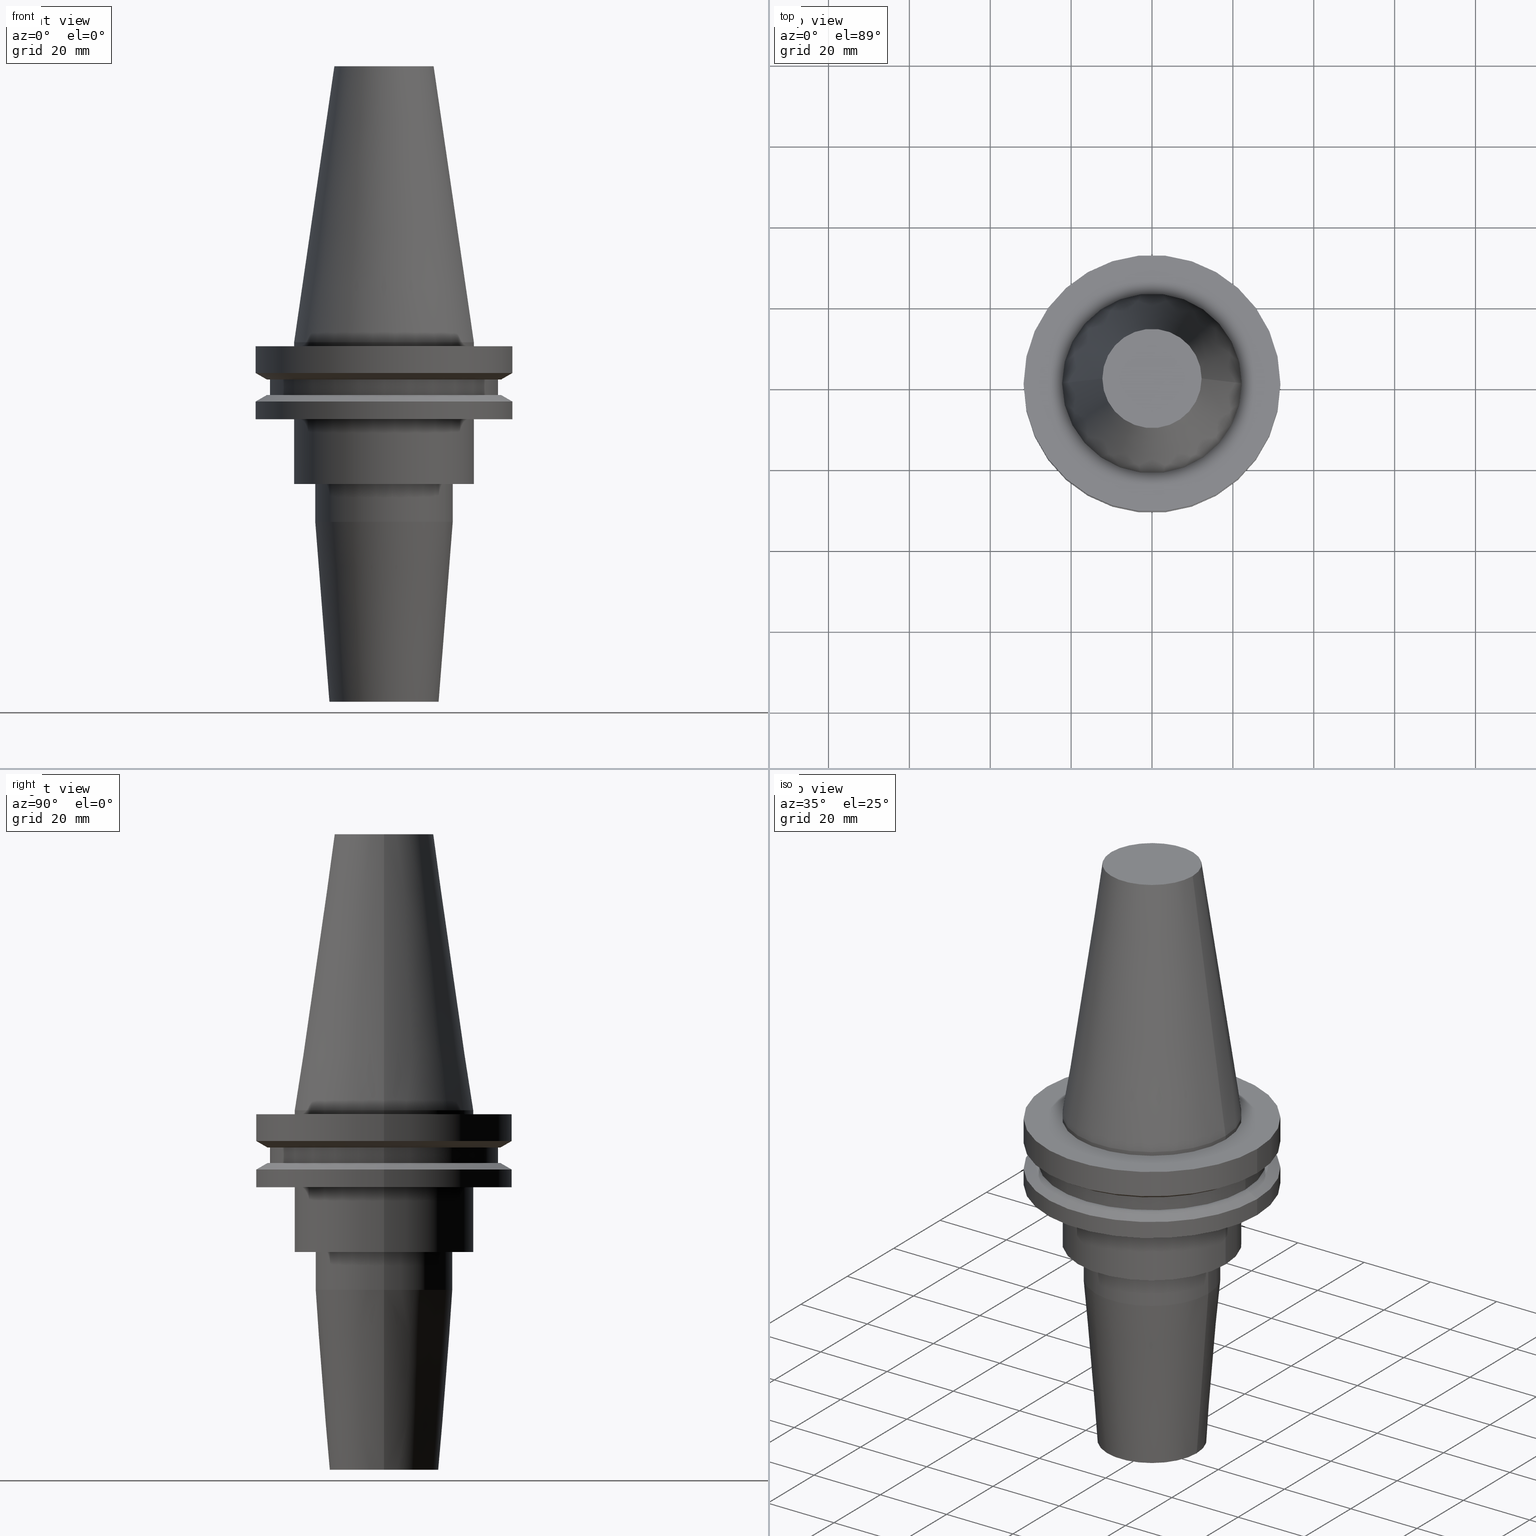
[diagram: canonical four-view strip — front | top / right | iso, engineering-drawing reading convention]
A machine part, canonical four-view strip (front | top / right | iso — engineering-drawing reading convention). The complete STEP part file that produces these views, byte-faithful:
ISO-10303-21;
HEADER;
FILE_DESCRIPTION (( 'STEP AP203' ),
    '1' );
FILE_NAME ('BCV40-SF_625-3_5.STEP',
    '2022-02-23T17:23:27',
    ( '' ),
    ( '' ),
    'SwSTEP 2.0',
    'SolidWorks 2021',
    '' );
FILE_SCHEMA (( 'CONFIG_CONTROL_DESIGN' ));
ENDSEC;

DATA;
#1 = DIRECTION ( 'NONE',  ( -0.000000000000000000, -0.000000000000000000, 1.000000000000000000 ) ) ;
#2 = CYLINDRICAL_SURFACE ( 'NONE', #279, 7.937499999999989342 ) ;
#3 = DIRECTION ( 'NONE',  ( -0.000000000000000000, -0.000000000000000000, 1.000000000000000000 ) ) ;
#4 = DIRECTION ( 'NONE',  ( -1.000000000000000000, 0.000000000000000000, -0.000000000000000000 ) ) ;
#5 = APPROVAL_PERSON_ORGANIZATION ( #416, #561, #233 ) ;
#6 = AXIS2_PLACEMENT_3D ( 'NONE', #642, #108, #193 ) ;
#7 = FACE_OUTER_BOUND ( 'NONE', #742, .T. ) ;
#8 = AXIS2_PLACEMENT_3D ( 'NONE', #260, #395, #518 ) ;
#9 = CARTESIAN_POINT ( 'NONE',  ( 0.000000000000000000, 0.000000000000000000, 68.25000000000000000 ) ) ;
#10 = DIRECTION ( 'NONE',  ( 0.000000000000000000, 0.000000000000000000, -1.000000000000000000 ) ) ;
#11 = DIRECTION ( 'NONE',  ( 1.000000000000000000, 0.000000000000000000, 0.000000000000000000 ) ) ;
#12 = EDGE_LOOP ( 'NONE', ( #713, #30 ) ) ;
#13 = ORIENTED_EDGE ( 'NONE', *, *, #185, .F. ) ;
#14 = CARTESIAN_POINT ( 'NONE',  ( -31.75000000000000000, 3.888253587292846476E-15, -7.605276606597335842 ) ) ;
#15 = CC_DESIGN_PERSON_AND_ORGANIZATION_ASSIGNMENT ( #546, #614, ( #535 ) ) ;
#16 = FACE_OUTER_BOUND ( 'NONE', #373, .T. ) ;
#17 = EDGE_CURVE ( 'NONE', #414, #148, #699, .T. ) ;
#18 = ORIENTED_EDGE ( 'NONE', *, *, #145, .F. ) ;
#19 = ADVANCED_FACE ( 'NONE', ( #422 ), #143, .T. ) ;
#20 = ORIENTED_EDGE ( 'NONE', *, *, #522, .F. ) ;
#21 = PERSON_AND_ORGANIZATION ( #134, #155 ) ;
#22 = AXIS2_PLACEMENT_3D ( 'NONE', #807, #265, #150 ) ;
#23 = LINE ( 'NONE', #91, #213 ) ;
#24 = CIRCLE ( 'NONE', #476, 7.937499999999992895 ) ;
#25 = VERTEX_POINT ( 'NONE', #635 ) ;
#26 = ORIENTED_EDGE ( 'NONE', *, *, #159, .F. ) ;
#27 = CALENDAR_DATE ( 2022, 23, 2 ) ;
#28 = DIRECTION ( 'NONE',  ( -0.8660254037844389297, 1.060575238724907285E-16, 0.4999999999999995004 ) ) ;
#29 = DIRECTION ( 'NONE',  ( -0.000000000000000000, -0.000000000000000000, 1.000000000000000000 ) ) ;
#30 = ORIENTED_EDGE ( 'NONE', *, *, #350, .T. ) ;
#31 = ADVANCED_FACE ( 'NONE', ( #617, #822 ), #304, .F. ) ;
#32 = CARTESIAN_POINT ( 'NONE',  ( 0.000000000000000000, 0.000000000000000000, -88.89999999999999147 ) ) ;
#33 = DIRECTION ( 'NONE',  ( -0.000000000000000000, -0.000000000000000000, 1.000000000000000000 ) ) ;
#34 = ORIENTED_EDGE ( 'NONE', *, *, #192, .F. ) ;
#35 = DATE_TIME_ROLE ( 'classification_date' ) ;
#36 = CARTESIAN_POINT ( 'NONE',  ( -17.00000000000000000, 2.081899558550500280E-15, -35.04999999999999716 ) ) ;
#37 = CIRCLE ( 'NONE', #90, 22.22500000000000142 ) ;
#38 = ORIENTED_EDGE ( 'NONE', *, *, #668, .F. ) ;
#39 = CONICAL_SURFACE ( 'NONE', #556, 13.50000000000000000, 0.07853981633973659837 ) ;
#40 = MANIFOLD_SOLID_BREP ( 'SF', #756 ) ;
#41 = VERTEX_POINT ( 'NONE', #814 ) ;
#42 = PERSON_AND_ORGANIZATION_ROLE ( 'creator' ) ;
#43 = CARTESIAN_POINT ( 'NONE',  ( 31.75000000000000000, 0.000000000000000000, -14.65472339340266572 ) ) ;
#44 = CARTESIAN_POINT ( 'NONE',  ( 0.000000000000000000, 0.000000000000000000, -13.05499999999999794 ) ) ;
#45 = EDGE_LOOP ( 'NONE', ( #129, #79, #440, #125 ) ) ;
#46 = EDGE_CURVE ( 'NONE', #164, #102, #24, .T. ) ;
#47 = DIRECTION ( 'NONE',  ( -0.000000000000000000, -0.000000000000000000, 1.000000000000000000 ) ) ;
#48 = ADVANCED_FACE ( 'NONE', ( #364 ), #371, .T. ) ;
#49 = DIRECTION ( 'NONE',  ( -0.000000000000000000, -0.000000000000000000, 1.000000000000000000 ) ) ;
#50 = EDGE_CURVE ( 'NONE', #238, #223, #490, .T. ) ;
#51 = EDGE_CURVE ( 'NONE', #632, #545, #643, .T. ) ;
#52 = VERTEX_POINT ( 'NONE', #830 ) ;
#53 = PLANE ( 'NONE',  #795 ) ;
#54 = CARTESIAN_POINT ( 'NONE',  ( 0.000000000000000000, 0.000000000000000000, 68.25000000000000000 ) ) ;
#55 = CIRCLE ( 'NONE', #711, 28.17999999999999972 ) ;
#56 = ORIENTED_EDGE ( 'NONE', *, *, #262, .F. ) ;
#57 = CARTESIAN_POINT ( 'NONE',  ( 0.000000000000000000, 0.000000000000000000, 68.25000000000000000 ) ) ;
#58 = CARTESIAN_POINT ( 'NONE',  ( -7.937499999999992895, 9.720633968232108301E-16, -88.89999999999999147 ) ) ;
#59 = ORIENTED_EDGE ( 'NONE', *, *, #531, .F. ) ;
#60 = CARTESIAN_POINT ( 'NONE',  ( 0.000000000000000000, 0.000000000000000000, 68.25000000000000000 ) ) ;
#61 = APPLICATION_CONTEXT ( 'configuration controlled 3d designs of mechanical parts and assemblies' ) ;
#62 = DIRECTION ( 'NONE',  ( 1.000000000000000000, 0.000000000000000000, 0.000000000000000000 ) ) ;
#63 = EDGE_CURVE ( 'NONE', #740, #632, #163, .T. ) ;
#64 = ORIENTED_EDGE ( 'NONE', *, *, #745, .F. ) ;
#65 = DIRECTION ( 'NONE',  ( -0.000000000000000000, -0.000000000000000000, 1.000000000000000000 ) ) ;
#66 = LINE ( 'NONE', #326, #203 ) ;
#67 = ORIENTED_EDGE ( 'NONE', *, *, #549, .F. ) ;
#68 = DIRECTION ( 'NONE',  ( 0.000000000000000000, 0.000000000000000000, -1.000000000000000000 ) ) ;
#69 = DIRECTION ( 'NONE',  ( -0.000000000000000000, -0.000000000000000000, 1.000000000000000000 ) ) ;
#70 = CARTESIAN_POINT ( 'NONE',  ( 0.000000000000000000, 0.000000000000000000, 68.25000000000000000 ) ) ;
#71 = EDGE_CURVE ( 'NONE', #223, #241, #55, .T. ) ;
#72 = DIRECTION ( 'NONE',  ( -0.000000000000000000, -0.000000000000000000, 1.000000000000000000 ) ) ;
#73 = CARTESIAN_POINT ( 'NONE',  ( 0.000000000000000000, 0.000000000000000000, -44.42828342338382441 ) ) ;
#74 = PRODUCT_DEFINITION_FORMATION_WITH_SPECIFIED_SOURCE ( 'ANY', '', #535, .NOT_KNOWN. ) ;
#75 = VECTOR ( 'NONE', #579, 1000.000000000000000 ) ;
#76 = DIRECTION ( 'NONE',  ( -0.000000000000000000, -0.000000000000000000, 1.000000000000000000 ) ) ;
#77 = AXIS2_PLACEMENT_3D ( 'NONE', #82, #72, #534 ) ;
#78 = DIRECTION ( 'NONE',  ( -0.000000000000000000, -0.000000000000000000, 1.000000000000000000 ) ) ;
#79 = ORIENTED_EDGE ( 'NONE', *, *, #636, .T. ) ;
#80 = ADVANCED_FACE ( 'NONE', ( #827 ), #294, .T. ) ;
#81 = EDGE_CURVE ( 'NONE', #241, #223, #338, .T. ) ;
#82 = CARTESIAN_POINT ( 'NONE',  ( 0.000000000000000000, 0.000000000000000000, -19.04999999999999716 ) ) ;
#83 = ADVANCED_FACE ( 'NONE', ( #427 ), #493, .T. ) ;
#84 = CARTESIAN_POINT ( 'NONE',  ( 0.000000000000000000, 0.000000000000000000, -88.89999999999999147 ) ) ;
#85 = ORIENTED_EDGE ( 'NONE', *, *, #350, .F. ) ;
#86 = COORDINATED_UNIVERSAL_TIME_OFFSET ( 6, 0, .BEHIND. ) ;
#87 = FACE_BOUND ( 'NONE', #93, .T. ) ;
#88 = ORIENTED_EDGE ( 'NONE', *, *, #438, .F. ) ;
#89 = VERTEX_POINT ( 'NONE', #644 ) ;
#90 = AXIS2_PLACEMENT_3D ( 'NONE', #437, #446, #374 ) ;
#91 = CARTESIAN_POINT ( 'NONE',  ( -28.97919780457007732, 3.548928183322474856E-15, -9.205000000000005400 ) ) ;
#92 = AXIS2_PLACEMENT_3D ( 'NONE', #507, #854, #848 ) ;
#93 = EDGE_LOOP ( 'NONE', ( #428, #13 ) ) ;
#94 = AXIS2_PLACEMENT_3D ( 'NONE', #73, #736, #528 ) ;
#95 = ORIENTED_EDGE ( 'NONE', *, *, #776, .T. ) ;
#96 = CARTESIAN_POINT ( 'NONE',  ( 22.22499999999999787, 0.000000000000000000, -35.04999999999999716 ) ) ;
#97 = DIRECTION ( 'NONE',  ( -0.000000000000000000, -0.000000000000000000, 1.000000000000000000 ) ) ;
#98 = ORIENTED_EDGE ( 'NONE', *, *, #302, .T. ) ;
#99 = DATE_AND_TIME ( #542, #707 ) ;
#100 = DIRECTION ( 'NONE',  ( -1.000000000000000000, 0.000000000000000000, -0.000000000000000000 ) ) ;
#101 = DIRECTION ( 'NONE',  ( 0.000000000000000000, 0.000000000000000000, -1.000000000000000000 ) ) ;
#102 = VERTEX_POINT ( 'NONE', #58 ) ;
#103 = CARTESIAN_POINT ( 'NONE',  ( -31.75000000000000000, 0.000000000000000000, -14.65472339340266572 ) ) ;
#104 = ADVANCED_FACE ( 'NONE', ( #777 ), #741, .T. ) ;
#105 = AXIS2_PLACEMENT_3D ( 'NONE', #615, #169, #752 ) ;
#106 = ORIENTED_EDGE ( 'NONE', *, *, #849, .T. ) ;
#107 = ORIENTED_EDGE ( 'NONE', *, *, #683, .F. ) ;
#108 = DIRECTION ( 'NONE',  ( -0.000000000000000000, -0.000000000000000000, 1.000000000000000000 ) ) ;
#109 = ORIENTED_EDGE ( 'NONE', *, *, #549, .T. ) ;
#110 = EDGE_LOOP ( 'NONE', ( #314, #587, #692, #450 ) ) ;
#111 = DIRECTION ( 'NONE',  ( -0.000000000000000000, -0.000000000000000000, 1.000000000000000000 ) ) ;
#112 = CARTESIAN_POINT ( 'NONE',  ( 0.000000000000000000, 0.000000000000000000, -9.205000000000005400 ) ) ;
#113 = ORIENTED_EDGE ( 'NONE', *, *, #185, .T. ) ;
#114 = LINE ( 'NONE', #647, #641 ) ;
#115 = CARTESIAN_POINT ( 'NONE',  ( -28.17999999999999972, 3.451054679997241634E-15, -13.05499999999999794 ) ) ;
#116 = CIRCLE ( 'NONE', #202, 7.937499999999987566 ) ;
#117 = CIRCLE ( 'NONE', #282, 31.75000000000000000 ) ;
#118 = VERTEX_POINT ( 'NONE', #833 ) ;
#119 = ADVANCED_FACE ( 'NONE', ( #844 ), #712, .T. ) ;
#120 = CARTESIAN_POINT ( 'NONE',  ( 0.000000000000000000, 0.000000000000000000, -9.205000000000005400 ) ) ;
#121 = CARTESIAN_POINT ( 'NONE',  ( -22.22499999999999787, 2.721777511104992454E-15, -35.04999999999999716 ) ) ;
#122 = VERTEX_POINT ( 'NONE', #121 ) ;
#123 = DIRECTION ( 'NONE',  ( 1.000000000000000000, 0.000000000000000000, 0.000000000000000000 ) ) ;
#124 = DIRECTION ( 'NONE',  ( 1.000000000000000000, 0.000000000000000000, 0.000000000000000000 ) ) ;
#125 = ORIENTED_EDGE ( 'NONE', *, *, #838, .F. ) ;
#126 =( NAMED_UNIT ( * ) SI_UNIT ( $, .STERADIAN. ) SOLID_ANGLE_UNIT ( ) );
#127 = CARTESIAN_POINT ( 'NONE',  ( -28.17999999999999972, 3.451054679997241634E-15, -9.204999999999991189 ) ) ;
#128 = AXIS2_PLACEMENT_3D ( 'NONE', #608, #429, #166 ) ;
#129 = ORIENTED_EDGE ( 'NONE', *, *, #719, .F. ) ;
#130 = AXIS2_PLACEMENT_3D ( 'NONE', #515, #187, #320 ) ;
#131 = CIRCLE ( 'NONE', #397, 12.27178102086201150 ) ;
#132 = FACE_OUTER_BOUND ( 'NONE', #559, .T. ) ;
#133 = EDGE_CURVE ( 'NONE', #122, #532, #824, .T. ) ;
#134 = PERSON ( 'UNSPECIFIED', 'UNSPECIFIED', 'UNSPECIFIED', ('UNSPECIFIED'), ('UNSPECIFIED'), ('UNSPECIFIED') ) ;
#135 = CARTESIAN_POINT ( 'NONE',  ( 17.00000000000000000, 0.000000000000000000, -44.42828342338382441 ) ) ;
#136 = DIRECTION ( 'NONE',  ( -0.000000000000000000, -0.000000000000000000, 1.000000000000000000 ) ) ;
#137 = DIRECTION ( 'NONE',  ( 1.000000000000000000, 0.000000000000000000, 0.000000000000000000 ) ) ;
#138 = CARTESIAN_POINT ( 'NONE',  ( 0.000000000000000000, 0.000000000000000000, 0.000000000000000000 ) ) ;
#139 = EDGE_CURVE ( 'NONE', #341, #409, #540, .T. ) ;
#140 = ADVANCED_FACE ( 'NONE', ( #639 ), #39, .T. ) ;
#141 = AXIS2_PLACEMENT_3D ( 'NONE', #57, #111, #638 ) ;
#142 = VECTOR ( 'NONE', #200, 1000.000000000000000 ) ;
#143 = CONICAL_SURFACE ( 'NONE', #299, 22.22500000000000142, 0.1448138465474119174 ) ;
#144 = FACE_OUTER_BOUND ( 'NONE', #322, .T. ) ;
#145 = EDGE_CURVE ( 'NONE', #516, #41, #117, .T. ) ;
#146 = ORIENTED_EDGE ( 'NONE', *, *, #474, .F. ) ;
#147 = APPLICATION_CONTEXT ( 'configuration controlled 3d designs of mechanical parts and assemblies' ) ;
#148 = VERTEX_POINT ( 'NONE', #253 ) ;
#149 = APPROVAL_STATUS ( 'not_yet_approved' ) ;
#150 = DIRECTION ( 'NONE',  ( 1.000000000000000000, 0.000000000000000000, 0.000000000000000000 ) ) ;
#151 = ORIENTED_EDGE ( 'NONE', *, *, #192, .T. ) ;
#152 = ORIENTED_EDGE ( 'NONE', *, *, #658, .F. ) ;
#153 = APPROVAL_ROLE ( '' ) ;
#154 = CARTESIAN_POINT ( 'NONE',  ( -22.22500000000000142, 2.721777511104992849E-15, -19.04999999999999716 ) ) ;
#155 = ORGANIZATION ( 'UNSPECIFIED', 'UNSPECIFIED', '' ) ;
#156 = DIRECTION ( 'NONE',  ( -0.000000000000000000, -0.000000000000000000, 1.000000000000000000 ) ) ;
#157 = ORIENTED_EDGE ( 'NONE', *, *, #81, .F. ) ;
#158 = DATE_TIME_ROLE ( 'creation_date' ) ;
#159 = EDGE_CURVE ( 'NONE', #791, #533, #769, .T. ) ;
#160 = AXIS2_PLACEMENT_3D ( 'NONE', #570, #506, #582 ) ;
#161 = DIRECTION ( 'NONE',  ( -0.000000000000000000, -0.000000000000000000, 1.000000000000000000 ) ) ;
#162 = CIRCLE ( 'NONE', #355, 28.17999999999999972 ) ;
#163 = LINE ( 'NONE', #240, #434 ) ;
#164 = VERTEX_POINT ( 'NONE', #456 ) ;
#165 = APPROVAL_DATE_TIME ( #560, #717 ) ;
#166 = DIRECTION ( 'NONE',  ( 1.000000000000000000, 0.000000000000000000, 0.000000000000000000 ) ) ;
#167 = DIRECTION ( 'NONE',  ( -0.000000000000000000, -0.000000000000000000, 1.000000000000000000 ) ) ;
#168 = PERSON_AND_ORGANIZATION ( #134, #155 ) ;
#169 = DIRECTION ( 'NONE',  ( -0.000000000000000000, -0.000000000000000000, 1.000000000000000000 ) ) ;
#170 = DIRECTION ( 'NONE',  ( 1.000000000000000000, 0.000000000000000000, 0.000000000000000000 ) ) ;
#171 = EDGE_CURVE ( 'NONE', #164, #431, #448, .T. ) ;
#172 = EDGE_CURVE ( 'NONE', #409, #341, #245, .T. ) ;
#173 = ORIENTED_EDGE ( 'NONE', *, *, #645, .F. ) ;
#174 = DIRECTION ( 'NONE',  ( 1.000000000000000000, 0.000000000000000000, 0.000000000000000000 ) ) ;
#175 = DIRECTION ( 'NONE',  ( -0.000000000000000000, -0.000000000000000000, 1.000000000000000000 ) ) ;
#176 = AXIS2_PLACEMENT_3D ( 'NONE', #367, #424, #693 ) ;
#177 = AXIS2_PLACEMENT_3D ( 'NONE', #112, #576, #388 ) ;
#178 = ORIENTED_EDGE ( 'NONE', *, *, #262, .T. ) ;
#179 = DIRECTION ( 'NONE',  ( 1.000000000000000000, 0.000000000000000000, 0.000000000000000000 ) ) ;
#180 = CARTESIAN_POINT ( 'NONE',  ( 0.000000000000000000, 0.000000000000000000, -88.89999999999999147 ) ) ;
#181 = ORIENTED_EDGE ( 'NONE', *, *, #17, .T. ) ;
#182 = FACE_BOUND ( 'NONE', #781, .T. ) ;
#183 = LINE ( 'NONE', #256, #571 ) ;
#184 = ORIENTED_EDGE ( 'NONE', *, *, #734, .T. ) ;
#185 = EDGE_CURVE ( 'NONE', #238, #381, #162, .T. ) ;
#186 = CARTESIAN_POINT ( 'NONE',  ( 22.22500000000000142, 2.721777511104992849E-15, 0.000000000000000000 ) ) ;
#187 = DIRECTION ( 'NONE',  ( -0.000000000000000000, -0.000000000000000000, 1.000000000000000000 ) ) ;
#188 = AXIS2_PLACEMENT_3D ( 'NONE', #349, #630, #826 ) ;
#189 = AXIS2_PLACEMENT_3D ( 'NONE', #591, #10, #602 ) ;
#190 = VECTOR ( 'NONE', #136, 1000.000000000000000 ) ;
#191 = ORIENTED_EDGE ( 'NONE', *, *, #498, .F. ) ;
#192 = EDGE_CURVE ( 'NONE', #458, #431, #836, .T. ) ;
#193 = DIRECTION ( 'NONE',  ( 1.000000000000000000, 0.000000000000000000, 0.000000000000000000 ) ) ;
#194 = DIRECTION ( 'NONE',  ( -1.000000000000000000, 0.000000000000000000, 0.000000000000000000 ) ) ;
#195 = EDGE_LOOP ( 'NONE', ( #688, #366, #837, #191 ) ) ;
#196 = DIRECTION ( 'NONE',  ( -0.000000000000000000, -0.000000000000000000, 1.000000000000000000 ) ) ;
#197 = CARTESIAN_POINT ( 'NONE',  ( 0.000000000000000000, 0.000000000000000000, -35.04999999999999716 ) ) ;
#198 = CC_DESIGN_DATE_AND_TIME_ASSIGNMENT ( #815, #35, ( #469 ) ) ;
#199 = EDGE_LOOP ( 'NONE', ( #541, #695, #831, #765 ) ) ;
#200 = DIRECTION ( 'NONE',  ( -0.000000000000000000, -0.000000000000000000, 1.000000000000000000 ) ) ;
#201 = DIRECTION ( 'NONE',  ( 1.000000000000000000, 0.000000000000000000, 0.000000000000000000 ) ) ;
#202 = AXIS2_PLACEMENT_3D ( 'NONE', #242, #47, #779 ) ;
#203 = VECTOR ( 'NONE', #439, 1000.000000000000000 ) ;
#204 = CARTESIAN_POINT ( 'NONE',  ( 0.000000000000000000, 7.937499999999987566, -49.89999999999999858 ) ) ;
#205 = DIRECTION ( 'NONE',  ( -0.000000000000000000, -0.000000000000000000, 1.000000000000000000 ) ) ;
#206 = DIRECTION ( 'NONE',  ( 1.000000000000000000, 0.000000000000000000, 0.000000000000000000 ) ) ;
#207 = CARTESIAN_POINT ( 'NONE',  ( -31.75000000000000000, 3.888253587292846476E-15, 68.25000000000000000 ) ) ;
#208 = LINE ( 'NONE', #792, #142 ) ;
#209 = EDGE_CURVE ( 'NONE', #430, #740, #183, .T. ) ;
#210 = FACE_OUTER_BOUND ( 'NONE', #199, .T. ) ;
#211 = LOCAL_TIME ( 11, 23, 27.00000000000000000, #478 ) ;
#212 = EDGE_LOOP ( 'NONE', ( #544, #633, #372, #552 ) ) ;
#213 = VECTOR ( 'NONE', #28, 1000.000000000000000 ) ;
#214 = EDGE_LOOP ( 'NONE', ( #673, #454, #173, #152 ) ) ;
#215 = PERSON_AND_ORGANIZATION_ROLE ( 'design_supplier' ) ;
#216 = CYLINDRICAL_SURFACE ( 'NONE', #246, 28.17999999999999972 ) ;
#217 = ORIENTED_EDGE ( 'NONE', *, *, #51, .F. ) ;
#218 = ORIENTED_EDGE ( 'NONE', *, *, #550, .F. ) ;
#219 = DATE_AND_TIME ( #281, #818 ) ;
#220 = DIRECTION ( 'NONE',  ( -0.000000000000000000, -0.000000000000000000, 1.000000000000000000 ) ) ;
#221 = DIRECTION ( 'NONE',  ( 1.000000000000000000, 0.000000000000000000, 0.000000000000000000 ) ) ;
#222 = CC_DESIGN_PERSON_AND_ORGANIZATION_ASSIGNMENT ( #168, #482, ( #471 ) ) ;
#223 = VERTEX_POINT ( 'NONE', #127 ) ;
#224 = EDGE_CURVE ( 'NONE', #376, #677, #66, .T. ) ;
#225 = CARTESIAN_POINT ( 'NONE',  ( 0.000000000000000000, 0.000000000000000000, -7.605276606597335842 ) ) ;
#226 = EDGE_CURVE ( 'NONE', #89, #258, #684, .T. ) ;
#227 = DIRECTION ( 'NONE',  ( 1.000000000000000000, 0.000000000000000000, 0.000000000000000000 ) ) ;
#228 = COORDINATED_UNIVERSAL_TIME_OFFSET ( 6, 0, .BEHIND. ) ;
#229 = VECTOR ( 'NONE', #220, 1000.000000000000000 ) ;
#230 = CARTESIAN_POINT ( 'NONE',  ( -7.937499999999989342, 9.720633968232104357E-16, 0.000000000000000000 ) ) ;
#231 = CIRCLE ( 'NONE', #449, 31.75000000000000000 ) ;
#232 = CARTESIAN_POINT ( 'NONE',  ( 0.000000000000000000, 0.000000000000000000, 68.25000000000000000 ) ) ;
#233 = APPROVAL_ROLE ( '' ) ;
#234 = CARTESIAN_POINT ( 'NONE',  ( -28.97919780457007732, 3.718590885307660666E-15, -9.205000000000005400 ) ) ;
#235 = DIRECTION ( 'NONE',  ( 1.000000000000000000, 0.000000000000000000, 0.000000000000000000 ) ) ;
#236 = EDGE_CURVE ( 'NONE', #420, #545, #659, .T. ) ;
#237 = ADVANCED_FACE ( 'NONE', ( #244 ), #772, .T. ) ;
#238 = VERTEX_POINT ( 'NONE', #115 ) ;
#239 = CARTESIAN_POINT ( 'NONE',  ( 31.75000000000000000, 0.000000000000000000, -7.605276606597335842 ) ) ;
#240 = CARTESIAN_POINT ( 'NONE',  ( 17.00000000000000000, 0.000000000000000000, 0.000000000000000000 ) ) ;
#241 = VERTEX_POINT ( 'NONE', #384 ) ;
#242 = CARTESIAN_POINT ( 'NONE',  ( 0.000000000000000000, 0.000000000000000000, -49.89999999999999858 ) ) ;
#243 = AXIS2_PLACEMENT_3D ( 'NONE', #575, #315, #832 ) ;
#244 = FACE_OUTER_BOUND ( 'NONE', #676, .T. ) ;
#245 = CIRCLE ( 'NONE', #728, 28.97919780457007732 ) ;
#246 = AXIS2_PLACEMENT_3D ( 'NONE', #530, #536, #470 ) ;
#247 = ORIENTED_EDGE ( 'NONE', *, *, #391, .F. ) ;
#248 = CARTESIAN_POINT ( 'NONE',  ( 22.22500000000000142, 0.000000000000000000, 68.25000000000000000 ) ) ;
#249 = DIRECTION ( 'NONE',  ( 1.000000000000000000, 0.000000000000000000, 0.000000000000000000 ) ) ;
#250 = PRODUCT_RELATED_PRODUCT_CATEGORY ( 'detail', '', ( #535 ) ) ;
#251 = EDGE_LOOP ( 'NONE', ( #109, #606, #301, #286 ) ) ;
#252 = DIRECTION ( 'NONE',  ( 0.1443082272672999711, 1.767266086135276757E-17, -0.9895327864921755756 ) ) ;
#253 = CARTESIAN_POINT ( 'NONE',  ( -28.97919780457008088, 0.000000000000000000, -13.05499999999999794 ) ) ;
#254 = ORIENTED_EDGE ( 'NONE', *, *, #577, .F. ) ;
#255 = PLANE ( 'NONE',  #407 ) ;
#256 = CARTESIAN_POINT ( 'NONE',  ( 13.50000000000000000, 0.000000000000000000, -88.89999999999999147 ) ) ;
#257 = AXIS2_PLACEMENT_3D ( 'NONE', #225, #161, #303 ) ;
#258 = VERTEX_POINT ( 'NONE', #405 ) ;
#259 = DIRECTION ( 'NONE',  ( -0.000000000000000000, -0.000000000000000000, 1.000000000000000000 ) ) ;
#260 = CARTESIAN_POINT ( 'NONE',  ( 0.000000000000000000, 0.000000000000000000, -19.04999999999999716 ) ) ;
#261 = ADVANCED_FACE ( 'NONE', ( #804 ), #344, .T. ) ;
#262 = EDGE_CURVE ( 'NONE', #568, #750, #231, .T. ) ;
#263 = EDGE_LOOP ( 'NONE', ( #346, #672, #95, #56 ) ) ;
#264 = CARTESIAN_POINT ( 'NONE',  ( -22.22500000000000142, 0.000000000000000000, 0.000000000000000000 ) ) ;
#265 = DIRECTION ( 'NONE',  ( 0.000000000000000000, -0.000000000000000000, 1.000000000000000000 ) ) ;
#266 = CARTESIAN_POINT ( 'NONE',  ( 0.000000000000000000, 0.000000000000000000, 68.25000000000000000 ) ) ;
#267 = CARTESIAN_POINT ( 'NONE',  ( 28.17999999999999972, 0.000000000000000000, -13.05499999999999794 ) ) ;
#268 = AXIS2_PLACEMENT_3D ( 'NONE', #816, #829, #100 ) ;
#269 = PLANE ( 'NONE',  #755 ) ;
#270 = DIRECTION ( 'NONE',  ( 1.000000000000000000, 0.000000000000000000, 0.000000000000000000 ) ) ;
#271 = ADVANCED_FACE ( 'NONE', ( #408 ), #216, .T. ) ;
#272 = CARTESIAN_POINT ( 'NONE',  ( 0.000000000000000000, 31.75000000000000000, -0.9999999999999995559 ) ) ;
#273 = DIRECTION ( 'NONE',  ( -0.000000000000000000, -0.000000000000000000, 1.000000000000000000 ) ) ;
#274 = ORIENTED_EDGE ( 'NONE', *, *, #236, .F. ) ;
#275 = ORIENTED_EDGE ( 'NONE', *, *, #847, .T. ) ;
#276 = DIRECTION ( 'NONE',  ( 1.000000000000000000, 0.000000000000000000, 0.000000000000000000 ) ) ;
#277 = FACE_BOUND ( 'NONE', #640, .T. ) ;
#278 = EDGE_LOOP ( 'NONE', ( #59, #845 ) ) ;
#279 = AXIS2_PLACEMENT_3D ( 'NONE', #521, #730, #399 ) ;
#280 = ORIENTED_EDGE ( 'NONE', *, *, #787, .F. ) ;
#281 = CALENDAR_DATE ( 2022, 23, 2 ) ;
#282 = AXIS2_PLACEMENT_3D ( 'NONE', #715, #452, #651 ) ;
#283 = AXIS2_PLACEMENT_3D ( 'NONE', #691, #167, #235 ) ;
#284 = DIRECTION ( 'NONE',  ( -0.8660254037844387076, 0.000000000000000000, -0.4999999999999998890 ) ) ;
#285 = EDGE_CURVE ( 'NONE', #791, #568, #402, .T. ) ;
#286 = ORIENTED_EDGE ( 'NONE', *, *, #209, .F. ) ;
#287 = ORIENTED_EDGE ( 'NONE', *, *, #411, .F. ) ;
#288 = PERSON_AND_ORGANIZATION ( #134, #155 ) ;
#289 = DIRECTION ( 'NONE',  ( 0.8660254037844389297, 0.000000000000000000, 0.4999999999999995004 ) ) ;
#290 = DIRECTION ( 'NONE',  ( 1.000000000000000000, 0.000000000000000000, 0.000000000000000000 ) ) ;
#291 = ORIENTED_EDGE ( 'NONE', *, *, #139, .T. ) ;
#292 = APPROVAL_DATE_TIME ( #219, #561 ) ;
#293 = CARTESIAN_POINT ( 'NONE',  ( 0.000000000000000000, 0.000000000000000000, 0.000000000000000000 ) ) ;
#294 = CYLINDRICAL_SURFACE ( 'NONE', #586, 31.75000000000000000 ) ;
#295 = PERSON_AND_ORGANIZATION ( #134, #155 ) ;
#296 = CIRCLE ( 'NONE', #782, 28.17999999999999972 ) ;
#297 = CYLINDRICAL_SURFACE ( 'NONE', #655, 17.00000000000000000 ) ;
#298 = VECTOR ( 'NONE', #1, 1000.000000000000000 ) ;
#299 = AXIS2_PLACEMENT_3D ( 'NONE', #435, #101, #764 ) ;
#300 = CARTESIAN_POINT ( 'NONE',  ( 0.000000000000000000, 0.000000000000000000, -88.89999999999999147 ) ) ;
#301 = ORIENTED_EDGE ( 'NONE', *, *, #323, .F. ) ;
#302 = EDGE_CURVE ( 'NONE', #770, #118, #131, .T. ) ;
#303 = DIRECTION ( 'NONE',  ( 1.000000000000000000, 0.000000000000000000, 0.000000000000000000 ) ) ;
#304 = PLANE ( 'NONE',  #853 ) ;
#305 = ORIENTED_EDGE ( 'NONE', *, *, #522, .T. ) ;
#306 = DIRECTION ( 'NONE',  ( 0.000000000000000000, -0.000000000000000000, 1.000000000000000000 ) ) ;
#307 = ORIENTED_EDGE ( 'NONE', *, *, #380, .F. ) ;
#308 = CC_DESIGN_APPROVAL ( #600, ( #471 ) ) ;
#309 = EDGE_LOOP ( 'NONE', ( #38, #34 ) ) ;
#310 = FACE_OUTER_BOUND ( 'NONE', #423, .T. ) ;
#311 = CIRCLE ( 'NONE', #821, 22.22500000000000142 ) ;
#312 = DIRECTION ( 'NONE',  ( -0.000000000000000000, -0.000000000000000000, 1.000000000000000000 ) ) ;
#313 = VECTOR ( 'NONE', #69, 1000.000000000000000 ) ;
#314 = ORIENTED_EDGE ( 'NONE', *, *, #523, .T. ) ;
#315 = DIRECTION ( 'NONE',  ( -0.000000000000000000, -0.000000000000000000, 1.000000000000000000 ) ) ;
#316 = DIRECTION ( 'NONE',  ( -0.000000000000000000, -0.000000000000000000, 1.000000000000000000 ) ) ;
#317 = ADVANCED_FACE ( 'NONE', ( #210 ), #738, .T. ) ;
#318 = ORIENTED_EDGE ( 'NONE', *, *, #631, .T. ) ;
#319 = DIRECTION ( 'NONE',  ( -0.000000000000000000, -0.000000000000000000, 1.000000000000000000 ) ) ;
#320 = DIRECTION ( 'NONE',  ( 1.000000000000000000, 0.000000000000000000, 0.000000000000000000 ) ) ;
#321 = ADVANCED_FACE ( 'NONE', ( #144, #793 ), #460, .F. ) ;
#322 = EDGE_LOOP ( 'NONE', ( #653, #778 ) ) ;
#323 = EDGE_CURVE ( 'NONE', #740, #420, #463, .T. ) ;
#324 = LINE ( 'NONE', #248, #352 ) ;
#325 = ADVANCED_FACE ( 'NONE', ( #132 ), #335, .F. ) ;
#326 = CARTESIAN_POINT ( 'NONE',  ( 22.22500000000000142, 0.000000000000000000, 68.25000000000000000 ) ) ;
#327 = CIRCLE ( 'NONE', #834, 13.50000000000000000 ) ;
#328 = AXIS2_PLACEMENT_3D ( 'NONE', #44, #375, #687 ) ;
#329 = EDGE_LOOP ( 'NONE', ( #291, #305, #505, #287 ) ) ;
#330 = DIRECTION ( 'NONE',  ( -0.000000000000000000, -0.000000000000000000, 1.000000000000000000 ) ) ;
#331 = FACE_OUTER_BOUND ( 'NONE', #621, .T. ) ;
#332 = CARTESIAN_POINT ( 'NONE',  ( 0.000000000000000000, 0.000000000000000000, -13.05499999999999794 ) ) ;
#333 = CARTESIAN_POINT ( 'NONE',  ( 31.75000000000000000, 0.000000000000000000, 68.25000000000000000 ) ) ;
#334 = CARTESIAN_POINT ( 'NONE',  ( 31.75000000000000000, 0.000000000000000000, 68.25000000000000000 ) ) ;
#335 = PLANE ( 'NONE',  #572 ) ;
#336 = CC_DESIGN_PERSON_AND_ORGANIZATION_ASSIGNMENT ( #21, #215, ( #74 ) ) ;
#337 = VECTOR ( 'NONE', #840, 1000.000000000000000 ) ;
#338 = CIRCLE ( 'NONE', #283, 28.17999999999999972 ) ;
#339 = CARTESIAN_POINT ( 'NONE',  ( 0.000000000000000000, 0.000000000000000000, -13.05499999999999794 ) ) ;
#340 = DIRECTION ( 'NONE',  ( 1.000000000000000000, 0.000000000000000000, 0.000000000000000000 ) ) ;
#341 = VERTEX_POINT ( 'NONE', #799 ) ;
#342 = ORIENTED_EDGE ( 'NONE', *, *, #171, .F. ) ;
#343 = CARTESIAN_POINT ( 'NONE',  ( 31.75000000000000000, 0.000000000000000000, -1.000000000000000888 ) ) ;
#344 = CYLINDRICAL_SURFACE ( 'NONE', #595, 22.22500000000000142 ) ;
#345 = ORIENTED_EDGE ( 'NONE', *, *, #474, .T. ) ;
#346 = ORIENTED_EDGE ( 'NONE', *, *, #285, .F. ) ;
#347 = EDGE_CURVE ( 'NONE', #677, #698, #503, .T. ) ;
#348 = LOCAL_TIME ( 11, 23, 27.00000000000000000, #362 ) ;
#349 = CARTESIAN_POINT ( 'NONE',  ( 0.000000000000000000, 0.000000000000000000, 0.000000000000000000 ) ) ;
#350 = EDGE_CURVE ( 'NONE', #102, #164, #731, .T. ) ;
#351 = ORIENTED_EDGE ( 'NONE', *, *, #50, .T. ) ;
#352 = VECTOR ( 'NONE', #319, 1000.000000000000000 ) ;
#353 = CONICAL_SURFACE ( 'NONE', #189, 31.75000000000000000, 1.047197551196597853 ) ;
#354 = SECURITY_CLASSIFICATION_LEVEL ( 'unclassified' ) ;
#355 = AXIS2_PLACEMENT_3D ( 'NONE', #442, #379, #580 ) ;
#356 = AXIS2_PLACEMENT_3D ( 'NONE', #743, #205, #664 ) ;
#357 = DIRECTION ( 'NONE',  ( 1.000000000000000000, 0.000000000000000000, 0.000000000000000000 ) ) ;
#358 = ORIENTED_EDGE ( 'NONE', *, *, #787, .T. ) ;
#359 = CARTESIAN_POINT ( 'NONE',  ( 28.97919780457008088, 3.718590885307660666E-15, -13.05499999999999794 ) ) ;
#360 = ORIENTED_EDGE ( 'NONE', *, *, #63, .T. ) ;
#361 = EDGE_LOOP ( 'NONE', ( #599, #351, #157, #146 ) ) ;
#362 = COORDINATED_UNIVERSAL_TIME_OFFSET ( 6, 0, .BEHIND. ) ;
#363 = DIRECTION ( 'NONE',  ( -0.000000000000000000, -0.000000000000000000, 1.000000000000000000 ) ) ;
#364 = FACE_OUTER_BOUND ( 'NONE', #329, .T. ) ;
#365 = ADVANCED_FACE ( 'NONE', ( #16, #277 ), #479, .F. ) ;
#366 = ORIENTED_EDGE ( 'NONE', *, *, #626, .T. ) ;
#367 = CARTESIAN_POINT ( 'NONE',  ( 0.000000000000000000, 0.000000000000000000, 0.000000000000000000 ) ) ;
#368 = CONICAL_SURFACE ( 'NONE', #739, 28.97919780457007732, 1.047197551196598297 ) ;
#369 = DIRECTION ( 'NONE',  ( -0.000000000000000000, -0.000000000000000000, 1.000000000000000000 ) ) ;
#370 = CIRCLE ( 'NONE', #809, 17.00000000000000000 ) ;
#371 = CONICAL_SURFACE ( 'NONE', #785, 28.97919780457007732, 1.047197551196598297 ) ;
#372 = ORIENTED_EDGE ( 'NONE', *, *, #838, .T. ) ;
#373 = EDGE_LOOP ( 'NONE', ( #709, #393 ) ) ;
#374 = DIRECTION ( 'NONE',  ( 1.000000000000000000, 0.000000000000000000, 0.000000000000000000 ) ) ;
#375 = DIRECTION ( 'NONE',  ( -0.000000000000000000, -0.000000000000000000, 1.000000000000000000 ) ) ;
#376 = VERTEX_POINT ( 'NONE', #413 ) ;
#377 = ADVANCED_FACE ( 'NONE', ( #331 ), #2, .F. ) ;
#378 = DIRECTION ( 'NONE',  ( 1.000000000000000000, 0.000000000000000000, 0.000000000000000000 ) ) ;
#379 = DIRECTION ( 'NONE',  ( -0.000000000000000000, -0.000000000000000000, 1.000000000000000000 ) ) ;
#380 = EDGE_CURVE ( 'NONE', #258, #516, #662, .T. ) ;
#381 = VERTEX_POINT ( 'NONE', #267 ) ;
#382 = CARTESIAN_POINT ( 'NONE',  ( 22.22500000000000142, 2.721777511104992849E-15, 0.000000000000000000 ) ) ;
#383 = VECTOR ( 'NONE', #284, 1000.000000000000000 ) ;
#384 = CARTESIAN_POINT ( 'NONE',  ( 28.17999999999999972, 0.000000000000000000, -9.204999999999991189 ) ) ;
#385 = AXIS2_PLACEMENT_3D ( 'NONE', #197, #316, #124 ) ;
#386 = ORIENTED_EDGE ( 'NONE', *, *, #654, .T. ) ;
#387 = DIRECTION ( 'NONE',  ( -0.000000000000000000, -0.000000000000000000, 1.000000000000000000 ) ) ;
#388 = DIRECTION ( 'NONE',  ( 1.000000000000000000, 0.000000000000000000, 0.000000000000000000 ) ) ;
#389 = EDGE_LOOP ( 'NONE', ( #519, #538, #744, #702 ) ) ;
#390 = CYLINDRICAL_SURFACE ( 'NONE', #141, 31.75000000000000000 ) ;
#391 = EDGE_CURVE ( 'NONE', #52, #430, #327, .T. ) ;
#392 = DIRECTION ( 'NONE',  ( 0.07845909572783674180, 0.000000000000000000, 0.9969173337331286300 ) ) ;
#393 = ORIENTED_EDGE ( 'NONE', *, *, #172, .F. ) ;
#394 = DIRECTION ( 'NONE',  ( -1.000000000000000000, 0.000000000000000000, 0.000000000000000000 ) ) ;
#395 = DIRECTION ( 'NONE',  ( -0.000000000000000000, -0.000000000000000000, 1.000000000000000000 ) ) ;
#396 = VECTOR ( 'NONE', #252, 999.9999999999998863 ) ;
#397 = AXIS2_PLACEMENT_3D ( 'NONE', #70, #78, #270 ) ;
#398 = CARTESIAN_POINT ( 'NONE',  ( 0.000000000000000000, 0.000000000000000000, -35.04999999999999716 ) ) ;
#399 = DIRECTION ( 'NONE',  ( 1.000000000000000000, 0.000000000000000000, 0.000000000000000000 ) ) ;
#400 = LINE ( 'NONE', #334, #298 ) ;
#401 = EDGE_CURVE ( 'NONE', #102, #458, #551, .T. ) ;
#402 = LINE ( 'NONE', #207, #190 ) ;
#403 = UNCERTAINTY_MEASURE_WITH_UNIT (LENGTH_MEASURE( 1.000000000000000082E-05 ), #737, 'distance_accuracy_value', 'NONE');
#404 = CARTESIAN_POINT ( 'NONE',  ( 0.000000000000000000, 0.000000000000000000, -14.65472339340266572 ) ) ;
#405 = CARTESIAN_POINT ( 'NONE',  ( 31.74999999999999289, 0.000000000000000000, -19.04999999999999716 ) ) ;
#406 = VERTEX_POINT ( 'NONE', #154 ) ;
#407 = AXIS2_PLACEMENT_3D ( 'NONE', #784, #306, #179 ) ;
#408 = FACE_OUTER_BOUND ( 'NONE', #361, .T. ) ;
#409 = VERTEX_POINT ( 'NONE', #234 ) ;
#410 = CC_DESIGN_DATE_AND_TIME_ASSIGNMENT ( #99, #158, ( #471 ) ) ;
#411 = EDGE_CURVE ( 'NONE', #341, #533, #813, .T. ) ;
#412 = APPROVAL_DATE_TIME ( #607, #600 ) ;
#413 = CARTESIAN_POINT ( 'NONE',  ( 22.22500000000000142, 0.000000000000000000, -1.000000000000000888 ) ) ;
#414 = VERTEX_POINT ( 'NONE', #359 ) ;
#415 = ORIENTED_EDGE ( 'NONE', *, *, #747, .T. ) ;
#416 = PERSON_AND_ORGANIZATION ( #134, #155 ) ;
#417 = CARTESIAN_POINT ( 'NONE',  ( 7.937499999999987566, 0.000000000000000000, -49.89999999999999858 ) ) ;
#418 = CARTESIAN_POINT ( 'NONE',  ( 0.000000000000000000, 0.000000000000000000, -35.04999999999999716 ) ) ;
#419 = VECTOR ( 'NONE', #767, 1000.000000000000000 ) ;
#420 = VERTEX_POINT ( 'NONE', #623 ) ;
#421 = CARTESIAN_POINT ( 'NONE',  ( 0.000000000000000000, 0.000000000000000000, -35.04999999999999716 ) ) ;
#422 = FACE_OUTER_BOUND ( 'NONE', #212, .T. ) ;
#423 = EDGE_LOOP ( 'NONE', ( #280, #386, #574, #88 ) ) ;
#424 = DIRECTION ( 'NONE',  ( 0.000000000000000000, 0.000000000000000000, 1.000000000000000000 ) ) ;
#425 = LINE ( 'NONE', #557, #229 ) ;
#426 = ADVANCED_FACE ( 'NONE', ( #686 ), #748, .T. ) ;
#427 = FACE_OUTER_BOUND ( 'NONE', #601, .T. ) ;
#428 = ORIENTED_EDGE ( 'NONE', *, *, #720, .F. ) ;
#429 = DIRECTION ( 'NONE',  ( -0.000000000000000000, -0.000000000000000000, 1.000000000000000000 ) ) ;
#430 = VERTEX_POINT ( 'NONE', #547 ) ;
#431 = VERTEX_POINT ( 'NONE', #417 ) ;
#432 = CIRCLE ( 'NONE', #526, 13.50000000000000000 ) ;
#433 = FACE_OUTER_BOUND ( 'NONE', #494, .T. ) ;
#434 = VECTOR ( 'NONE', #97, 1000.000000000000000 ) ;
#435 = CARTESIAN_POINT ( 'NONE',  ( 0.000000000000000000, 0.000000000000000000, 0.000000000000000000 ) ) ;
#436 = ORIENTED_EDGE ( 'NONE', *, *, #645, .T. ) ;
#437 = CARTESIAN_POINT ( 'NONE',  ( 0.000000000000000000, 0.000000000000000000, -1.000000000000000888 ) ) ;
#438 = EDGE_CURVE ( 'NONE', #698, #677, #473, .T. ) ;
#439 = DIRECTION ( 'NONE',  ( -0.000000000000000000, -0.000000000000000000, 1.000000000000000000 ) ) ;
#440 = ORIENTED_EDGE ( 'NONE', *, *, #347, .T. ) ;
#441 = CARTESIAN_POINT ( 'NONE',  ( 0.000000000000000000, 0.000000000000000000, -14.65472339340266572 ) ) ;
#442 = CARTESIAN_POINT ( 'NONE',  ( 0.000000000000000000, 0.000000000000000000, -13.05499999999999794 ) ) ;
#443 = ADVANCED_FACE ( 'NONE', ( #492 ), #297, .T. ) ;
#444 = CC_DESIGN_APPROVAL ( #717, ( #74 ) ) ;
#445 = ORIENTED_EDGE ( 'NONE', *, *, #172, .T. ) ;
#446 = DIRECTION ( 'NONE',  ( -0.000000000000000000, -0.000000000000000000, 1.000000000000000000 ) ) ;
#447 = CONICAL_SURFACE ( 'NONE', #105, 13.50000000000000000, 0.07853981633973659837 ) ;
#448 = LINE ( 'NONE', #786, #611 ) ;
#449 = AXIS2_PLACEMENT_3D ( 'NONE', #468, #273, #802 ) ;
#450 = ORIENTED_EDGE ( 'NONE', *, *, #776, .F. ) ;
#451 = FACE_OUTER_BOUND ( 'NONE', #389, .T. ) ;
#452 = DIRECTION ( 'NONE',  ( -0.000000000000000000, -0.000000000000000000, 1.000000000000000000 ) ) ;
#453 = CC_DESIGN_PERSON_AND_ORGANIZATION_ASSIGNMENT ( #288, #689, ( #469 ) ) ;
#454 = ORIENTED_EDGE ( 'NONE', *, *, #550, .T. ) ;
#455 = CARTESIAN_POINT ( 'NONE',  ( 0.000000000000000000, 0.000000000000000000, -19.04999999999999716 ) ) ;
#456 = CARTESIAN_POINT ( 'NONE',  ( 7.937499999999992895, 0.000000000000000000, -88.89999999999999147 ) ) ;
#457 = APPROVAL_PERSON_ORGANIZATION ( #751, #600, #746 ) ;
#458 = VERTEX_POINT ( 'NONE', #820 ) ;
#459 = DIRECTION ( 'NONE',  ( 1.000000000000000000, 0.000000000000000000, 0.000000000000000000 ) ) ;
#460 = PLANE ( 'NONE',  #839 ) ;
#461 = CIRCLE ( 'NONE', #609, 31.75000000000000000 ) ;
#462 = AXIS2_PLACEMENT_3D ( 'NONE', #768, #175, #62 ) ;
#463 = CIRCLE ( 'NONE', #94, 17.00000000000000000 ) ;
#464 = ADVANCED_FACE ( 'NONE', ( #486 ), #447, .T. ) ;
#465 = DIRECTION ( 'NONE',  ( 1.000000000000000000, 0.000000000000000000, 0.000000000000000000 ) ) ;
#466 = CARTESIAN_POINT ( 'NONE',  ( 0.000000000000000000, 0.000000000000000000, -88.89999999999999147 ) ) ;
#467 = DIRECTION ( 'NONE',  ( -0.000000000000000000, -0.000000000000000000, 1.000000000000000000 ) ) ;
#468 = CARTESIAN_POINT ( 'NONE',  ( 0.000000000000000000, 0.000000000000000000, -1.000000000000000888 ) ) ;
#469 = SECURITY_CLASSIFICATION ( '', '', #354 ) ;
#470 = DIRECTION ( 'NONE',  ( 1.000000000000000000, 0.000000000000000000, 0.000000000000000000 ) ) ;
#471 = PRODUCT_DEFINITION ( 'UNKNOWN', '', #74, #596 ) ;
#472 = EDGE_LOOP ( 'NONE', ( #274, #184, #360, #485 ) ) ;
#473 = CIRCLE ( 'NONE', #514, 22.22500000000000142 ) ;
#474 = EDGE_CURVE ( 'NONE', #381, #241, #425, .T. ) ;
#475 = ADVANCED_FACE ( 'NONE', ( #87, #433 ), #483, .F. ) ;
#476 = AXIS2_PLACEMENT_3D ( 'NONE', #300, #29, #290 ) ;
#477 = EDGE_LOOP ( 'NONE', ( #107, #487 ) ) ;
#478 = COORDINATED_UNIVERSAL_TIME_OFFSET ( 6, 0, .BEHIND. ) ;
#479 = PLANE ( 'NONE',  #22 ) ;
#480 = ORIENTED_EDGE ( 'NONE', *, *, #729, .T. ) ;
#481 = ORIENTED_EDGE ( 'NONE', *, *, #719, .T. ) ;
#482 = PERSON_AND_ORGANIZATION_ROLE ( 'creator' ) ;
#483 = PLANE ( 'NONE',  #268 ) ;
#484 = DIRECTION ( 'NONE',  ( 1.000000000000000000, 0.000000000000000000, 0.000000000000000000 ) ) ;
#485 = ORIENTED_EDGE ( 'NONE', *, *, #847, .F. ) ;
#486 = FACE_OUTER_BOUND ( 'NONE', #578, .T. ) ;
#487 = ORIENTED_EDGE ( 'NONE', *, *, #654, .F. ) ;
#488 = AXIS2_PLACEMENT_3D ( 'NONE', #60, #65, #513 ) ;
#489 = CARTESIAN_POINT ( 'NONE',  ( 28.97919780457007732, 0.000000000000000000, -9.205000000000005400 ) ) ;
#490 = LINE ( 'NONE', #749, #628 ) ;
#491 = APPLICATION_PROTOCOL_DEFINITION ( 'international standard', 'config_control_design', 1994, #147 ) ;
#492 = FACE_OUTER_BOUND ( 'NONE', #757, .T. ) ;
#493 = CYLINDRICAL_SURFACE ( 'NONE', #462, 22.22500000000000142 ) ;
#494 = EDGE_LOOP ( 'NONE', ( #480, #181 ) ) ;
#495 = DIRECTION ( 'NONE',  ( -0.000000000000000000, -0.000000000000000000, 1.000000000000000000 ) ) ;
#496 = DIRECTION ( 'NONE',  ( 1.000000000000000000, 0.000000000000000000, 0.000000000000000000 ) ) ;
#497 = CC_DESIGN_PERSON_AND_ORGANIZATION_ASSIGNMENT ( #825, #42, ( #74 ) ) ;
#498 = EDGE_CURVE ( 'NONE', #148, #41, #759, .T. ) ;
#499 = EDGE_LOOP ( 'NONE', ( #436, #604 ) ) ;
#500 = VECTOR ( 'NONE', #330, 1000.000000000000000 ) ;
#501 = FACE_OUTER_BOUND ( 'NONE', #309, .T. ) ;
#502 = AXIS2_PLACEMENT_3D ( 'NONE', #510, #585, #780 ) ;
#503 = CIRCLE ( 'NONE', #612, 22.22500000000000142 ) ;
#504 = DIRECTION ( 'NONE',  ( -0.000000000000000000, -0.000000000000000000, 1.000000000000000000 ) ) ;
#505 = ORIENTED_EDGE ( 'NONE', *, *, #523, .F. ) ;
#506 = DIRECTION ( 'NONE',  ( -0.000000000000000000, -0.000000000000000000, 1.000000000000000000 ) ) ;
#507 = CARTESIAN_POINT ( 'NONE',  ( 0.000000000000000000, 0.000000000000000000, -49.89999999999999858 ) ) ;
#508 = ORIENTED_EDGE ( 'NONE', *, *, #347, .F. ) ;
#509 = FACE_OUTER_BOUND ( 'NONE', #263, .T. ) ;
#510 = CARTESIAN_POINT ( 'NONE',  ( 0.000000000000000000, 0.000000000000000000, -7.605276606597335842 ) ) ;
#511 = EDGE_LOOP ( 'NONE', ( #705, #805, #810, #850 ) ) ;
#512 = ADVANCED_FACE ( 'NONE', ( #543 ), #690, .T. ) ;
#513 = DIRECTION ( 'NONE',  ( 1.000000000000000000, 0.000000000000000000, 0.000000000000000000 ) ) ;
#514 = AXIS2_PLACEMENT_3D ( 'NONE', #293, #680, #357 ) ;
#515 = CARTESIAN_POINT ( 'NONE',  ( 0.000000000000000000, 0.000000000000000000, 68.25000000000000000 ) ) ;
#516 = VERTEX_POINT ( 'NONE', #43 ) ;
#517 = CYLINDRICAL_SURFACE ( 'NONE', #160, 7.937499999999989342 ) ;
#518 = DIRECTION ( 'NONE',  ( 1.000000000000000000, 0.000000000000000000, 0.000000000000000000 ) ) ;
#519 = ORIENTED_EDGE ( 'NONE', *, *, #401, .F. ) ;
#520 = DIRECTION ( 'NONE',  ( 0.000000000000000000, 0.000000000000000000, -1.000000000000000000 ) ) ;
#521 = CARTESIAN_POINT ( 'NONE',  ( 0.000000000000000000, 0.000000000000000000, 0.000000000000000000 ) ) ;
#522 = EDGE_CURVE ( 'NONE', #409, #791, #23, .T. ) ;
#523 = EDGE_CURVE ( 'NONE', #533, #791, #808, .T. ) ;
#524 = DIRECTION ( 'NONE',  ( -0.000000000000000000, -0.000000000000000000, 1.000000000000000000 ) ) ;
#525 = CARTESIAN_POINT ( 'NONE',  ( 0.000000000000000000, 12.27178102086201150, 68.25000000000000000 ) ) ;
#526 = AXIS2_PLACEMENT_3D ( 'NONE', #32, #495, #174 ) ;
#527 = CARTESIAN_POINT ( 'NONE',  ( 0.000000000000000000, 0.000000000000000000, -44.42828342338382441 ) ) ;
#528 = DIRECTION ( 'NONE',  ( 1.000000000000000000, 0.000000000000000000, 0.000000000000000000 ) ) ;
#529 = DIRECTION ( 'NONE',  ( -1.000000000000000000, 0.000000000000000000, -0.000000000000000000 ) ) ;
#530 = CARTESIAN_POINT ( 'NONE',  ( 0.000000000000000000, 0.000000000000000000, 68.25000000000000000 ) ) ;
#531 = EDGE_CURVE ( 'NONE', #532, #122, #569, .T. ) ;
#532 = VERTEX_POINT ( 'NONE', #96 ) ;
#533 = VERTEX_POINT ( 'NONE', #239 ) ;
#534 = DIRECTION ( 'NONE',  ( 1.000000000000000000, 0.000000000000000000, 0.000000000000000000 ) ) ;
#535 = PRODUCT ( 'BCV40-SF_625-3_5', 'BCV40-SF_625-3_5', '', ( #758 ) ) ;
#536 = DIRECTION ( 'NONE',  ( -0.000000000000000000, -0.000000000000000000, 1.000000000000000000 ) ) ;
#537 = AXIS2_PLACEMENT_3D ( 'NONE', #421, #363, #619 ) ;
#538 = ORIENTED_EDGE ( 'NONE', *, *, #46, .F. ) ;
#539 = CIRCLE ( 'NONE', #243, 31.75000000000000000 ) ;
#540 = CIRCLE ( 'NONE', #177, 28.97919780457007732 ) ;
#541 = ORIENTED_EDGE ( 'NONE', *, *, #849, .F. ) ;
#542 = CALENDAR_DATE ( 2022, 23, 2 ) ;
#543 = FACE_OUTER_BOUND ( 'NONE', #685, .T. ) ;
#544 = ORIENTED_EDGE ( 'NONE', *, *, #636, .F. ) ;
#545 = VERTEX_POINT ( 'NONE', #36 ) ;
#546 = PERSON_AND_ORGANIZATION ( #134, #155 ) ;
#547 = CARTESIAN_POINT ( 'NONE',  ( 13.50000000000000000, 0.000000000000000000, -88.89999999999999147 ) ) ;
#548 = ORIENTED_EDGE ( 'NONE', *, *, #391, .T. ) ;
#549 = EDGE_CURVE ( 'NONE', #430, #52, #432, .T. ) ;
#550 = EDGE_CURVE ( 'NONE', #122, #406, #703, .T. ) ;
#551 = LINE ( 'NONE', #230, #419 ) ;
#552 = ORIENTED_EDGE ( 'NONE', *, *, #438, .T. ) ;
#553 = ADVANCED_BREP_SHAPE_REPRESENTATION ( 'BCV40-SF_625-3_5', ( #40, #176 ), #584 ) ;
#554 = AXIS2_PLACEMENT_3D ( 'NONE', #455, #467, #206 ) ;
#555 = APPROVAL_STATUS ( 'not_yet_approved' ) ;
#556 = AXIS2_PLACEMENT_3D ( 'NONE', #180, #504, #249 ) ;
#557 = CARTESIAN_POINT ( 'NONE',  ( 28.17999999999999972, 0.000000000000000000, 68.25000000000000000 ) ) ;
#558 = ORIENTED_EDGE ( 'NONE', *, *, #209, .T. ) ;
#559 = EDGE_LOOP ( 'NONE', ( #98, #481 ) ) ;
#560 = DATE_AND_TIME ( #618, #605 ) ;
#561 = APPROVAL ( #812, 'UNSPECIFIED' ) ;
#562 = DIRECTION ( 'NONE',  ( 1.000000000000000000, 0.000000000000000000, 0.000000000000000000 ) ) ;
#563 = ADVANCED_FACE ( 'NONE', ( #451 ), #517, .F. ) ;
#564 = CARTESIAN_POINT ( 'NONE',  ( 0.000000000000000000, 13.50000000000000000, -88.89999999999999147 ) ) ;
#565 = ORIENTED_EDGE ( 'NONE', *, *, #63, .F. ) ;
#566 = CARTESIAN_POINT ( 'NONE',  ( -22.22500000000000142, 2.721777511104992849E-15, 68.25000000000000000 ) ) ;
#567 = DIRECTION ( 'NONE',  ( -0.000000000000000000, -0.000000000000000000, 1.000000000000000000 ) ) ;
#568 = VERTEX_POINT ( 'NONE', #634 ) ;
#569 = CIRCLE ( 'NONE', #537, 22.22499999999999787 ) ;
#570 = CARTESIAN_POINT ( 'NONE',  ( 0.000000000000000000, 0.000000000000000000, 0.000000000000000000 ) ) ;
#571 = VECTOR ( 'NONE', #392, 1000.000000000000000 ) ;
#572 = AXIS2_PLACEMENT_3D ( 'NONE', #525, #675, #4 ) ;
#573 = DIRECTION ( 'NONE',  ( 1.000000000000000000, 0.000000000000000000, 0.000000000000000000 ) ) ;
#574 = ORIENTED_EDGE ( 'NONE', *, *, #224, .T. ) ;
#575 = CARTESIAN_POINT ( 'NONE',  ( 0.000000000000000000, 0.000000000000000000, -1.000000000000000888 ) ) ;
#576 = DIRECTION ( 'NONE',  ( -0.000000000000000000, -0.000000000000000000, 1.000000000000000000 ) ) ;
#577 = EDGE_CURVE ( 'NONE', #52, #420, #775, .T. ) ;
#578 = EDGE_LOOP ( 'NONE', ( #254, #548, #558, #842 ) ) ;
#579 = DIRECTION ( 'NONE',  ( -0.07845909572783674180, 9.608468044709104308E-18, 0.9969173337331286300 ) ) ;
#580 = DIRECTION ( 'NONE',  ( 1.000000000000000000, 0.000000000000000000, 0.000000000000000000 ) ) ;
#581 = ORIENTED_EDGE ( 'NONE', *, *, #658, .T. ) ;
#582 = DIRECTION ( 'NONE',  ( 1.000000000000000000, 0.000000000000000000, 0.000000000000000000 ) ) ;
#583 = AXIS2_PLACEMENT_3D ( 'NONE', #332, #524, #276 ) ;
#584 =( GEOMETRIC_REPRESENTATION_CONTEXT ( 3 ) GLOBAL_UNCERTAINTY_ASSIGNED_CONTEXT ( ( #403 ) ) GLOBAL_UNIT_ASSIGNED_CONTEXT ( ( #737, #721, #126 ) ) REPRESENTATION_CONTEXT ( 'NONE', 'WORKASPACE' ) );
#585 = DIRECTION ( 'NONE',  ( -0.000000000000000000, -0.000000000000000000, 1.000000000000000000 ) ) ;
#586 = AXIS2_PLACEMENT_3D ( 'NONE', #232, #760, #170 ) ;
#587 = ORIENTED_EDGE ( 'NONE', *, *, #285, .T. ) ;
#588 = DIRECTION ( 'NONE',  ( 1.000000000000000000, 0.000000000000000000, 0.000000000000000000 ) ) ;
#589 = EDGE_CURVE ( 'NONE', #41, #516, #461, .T. ) ;
#590 = DIRECTION ( 'NONE',  ( 1.000000000000000000, 0.000000000000000000, 0.000000000000000000 ) ) ;
#591 = CARTESIAN_POINT ( 'NONE',  ( 0.000000000000000000, 0.000000000000000000, -14.65472339340266572 ) ) ;
#592 = DIRECTION ( 'NONE',  ( -0.000000000000000000, -0.000000000000000000, 1.000000000000000000 ) ) ;
#593 = FACE_BOUND ( 'NONE', #477, .T. ) ;
#594 = DIRECTION ( 'NONE',  ( 0.000000000000000000, -0.000000000000000000, 1.000000000000000000 ) ) ;
#595 = AXIS2_PLACEMENT_3D ( 'NONE', #9, #666, #340 ) ;
#596 = DESIGN_CONTEXT ( 'detailed design', #61, 'design' ) ;
#597 = DIRECTION ( 'NONE',  ( 1.000000000000000000, 0.000000000000000000, 0.000000000000000000 ) ) ;
#598 = CARTESIAN_POINT ( 'NONE',  ( 0.000000000000000000, 31.74999999999999289, -19.04999999999999716 ) ) ;
#599 = ORIENTED_EDGE ( 'NONE', *, *, #720, .T. ) ;
#600 = APPROVAL ( #149, 'UNSPECIFIED' ) ;
#601 = EDGE_LOOP ( 'NONE', ( #218, #828, #581, #64 ) ) ;
#602 = DIRECTION ( 'NONE',  ( -1.000000000000000000, 0.000000000000000000, 0.000000000000000000 ) ) ;
#603 = DIRECTION ( 'NONE',  ( -0.000000000000000000, -0.000000000000000000, 1.000000000000000000 ) ) ;
#604 = ORIENTED_EDGE ( 'NONE', *, *, #745, .T. ) ;
#605 = LOCAL_TIME ( 11, 23, 27.00000000000000000, #674 ) ;
#606 = ORIENTED_EDGE ( 'NONE', *, *, #577, .T. ) ;
#607 = DATE_AND_TIME ( #27, #348 ) ;
#608 = CARTESIAN_POINT ( 'NONE',  ( 0.000000000000000000, 0.000000000000000000, 68.25000000000000000 ) ) ;
#609 = AXIS2_PLACEMENT_3D ( 'NONE', #441, #196, #846 ) ;
#610 = ORIENTED_EDGE ( 'NONE', *, *, #71, .F. ) ;
#611 = VECTOR ( 'NONE', #841, 1000.000000000000000 ) ;
#612 = AXIS2_PLACEMENT_3D ( 'NONE', #138, #671, #11 ) ;
#613 = EDGE_LOOP ( 'NONE', ( #20, #445, #637, #26 ) ) ;
#614 = PERSON_AND_ORGANIZATION_ROLE ( 'design_owner' ) ;
#615 = CARTESIAN_POINT ( 'NONE',  ( 0.000000000000000000, 0.000000000000000000, -88.89999999999999147 ) ) ;
#616 = ADVANCED_FACE ( 'NONE', ( #182, #706 ), #255, .F. ) ;
#617 = FACE_OUTER_BOUND ( 'NONE', #855, .T. ) ;
#618 = CALENDAR_DATE ( 2022, 23, 2 ) ;
#619 = DIRECTION ( 'NONE',  ( 1.000000000000000000, 0.000000000000000000, 0.000000000000000000 ) ) ;
#620 = CARTESIAN_POINT ( 'NONE',  ( 0.000000000000000000, 0.000000000000000000, -9.204999999999991189 ) ) ;
#621 = EDGE_LOOP ( 'NONE', ( #85, #624, #151, #342 ) ) ;
#622 = CALENDAR_DATE ( 2022, 23, 2 ) ;
#623 = CARTESIAN_POINT ( 'NONE',  ( -17.00000000000000000, 2.081899558550500280E-15, -44.42828342338382441 ) ) ;
#624 = ORIENTED_EDGE ( 'NONE', *, *, #401, .T. ) ;
#625 = CIRCLE ( 'NONE', #667, 12.27178102086201150 ) ;
#626 = EDGE_CURVE ( 'NONE', #414, #516, #114, .T. ) ;
#627 = ORIENTED_EDGE ( 'NONE', *, *, #683, .T. ) ;
#628 = VECTOR ( 'NONE', #156, 1000.000000000000000 ) ;
#629 = ADVANCED_FACE ( 'NONE', ( #310 ), #852, .T. ) ;
#630 = DIRECTION ( 'NONE',  ( -0.000000000000000000, -0.000000000000000000, 1.000000000000000000 ) ) ;
#631 = EDGE_CURVE ( 'NONE', #750, #568, #539, .T. ) ;
#632 = VERTEX_POINT ( 'NONE', #771 ) ;
#633 = ORIENTED_EDGE ( 'NONE', *, *, #302, .F. ) ;
#634 = CARTESIAN_POINT ( 'NONE',  ( -31.75000000000000000, 3.888253587292846476E-15, -1.000000000000000888 ) ) ;
#635 = CARTESIAN_POINT ( 'NONE',  ( -22.22500000000000142, 2.721777511104992849E-15, -1.000000000000000888 ) ) ;
#636 = EDGE_CURVE ( 'NONE', #118, #677, #843, .T. ) ;
#637 = ORIENTED_EDGE ( 'NONE', *, *, #411, .T. ) ;
#638 = DIRECTION ( 'NONE',  ( 1.000000000000000000, 0.000000000000000000, 0.000000000000000000 ) ) ;
#639 = FACE_OUTER_BOUND ( 'NONE', #251, .T. ) ;
#640 = EDGE_LOOP ( 'NONE', ( #646, #788 ) ) ;
#641 = VECTOR ( 'NONE', #700, 1000.000000000000000 ) ;
#642 = CARTESIAN_POINT ( 'NONE',  ( 0.000000000000000000, 0.000000000000000000, -19.04999999999999716 ) ) ;
#643 = CIRCLE ( 'NONE', #661, 17.00000000000000000 ) ;
#644 = CARTESIAN_POINT ( 'NONE',  ( -31.74999999999999289, 3.888253587292845687E-15, -19.04999999999999716 ) ) ;
#645 = EDGE_CURVE ( 'NONE', #761, #406, #725, .T. ) ;
#646 = ORIENTED_EDGE ( 'NONE', *, *, #81, .T. ) ;
#647 = CARTESIAN_POINT ( 'NONE',  ( 31.75000000000000000, 3.888253587292846476E-15, -14.65472339340266572 ) ) ;
#648 = DIRECTION ( 'NONE',  ( 0.000000000000000000, 0.000000000000000000, -1.000000000000000000 ) ) ;
#649 = ORIENTED_EDGE ( 'NONE', *, *, #50, .F. ) ;
#650 = CARTESIAN_POINT ( 'NONE',  ( 0.000000000000000000, 0.000000000000000000, -1.000000000000000888 ) ) ;
#651 = DIRECTION ( 'NONE',  ( 1.000000000000000000, 0.000000000000000000, 0.000000000000000000 ) ) ;
#652 = PRODUCT_DEFINITION_SHAPE ( 'NONE', 'NONE',  #471 ) ;
#653 = ORIENTED_EDGE ( 'NONE', *, *, #747, .F. ) ;
#654 = EDGE_CURVE ( 'NONE', #25, #376, #37, .T. ) ;
#655 = AXIS2_PLACEMENT_3D ( 'NONE', #694, #369, #762 ) ;
#656 = DIRECTION ( 'NONE',  ( -0.000000000000000000, -0.000000000000000000, 1.000000000000000000 ) ) ;
#657 = CONICAL_SURFACE ( 'NONE', #835, 31.75000000000000000, 1.047197551196597853 ) ;
#658 = EDGE_CURVE ( 'NONE', #532, #761, #324, .T. ) ;
#659 = LINE ( 'NONE', #708, #313 ) ;
#660 = ADVANCED_FACE ( 'NONE', ( #509 ), #390, .T. ) ;
#661 = AXIS2_PLACEMENT_3D ( 'NONE', #418, #682, #227 ) ;
#662 = LINE ( 'NONE', #333, #753 ) ;
#663 = CARTESIAN_POINT ( 'NONE',  ( 22.22500000000000142, 0.000000000000000000, -19.04999999999999716 ) ) ;
#664 = DIRECTION ( 'NONE',  ( 1.000000000000000000, 0.000000000000000000, 0.000000000000000000 ) ) ;
#665 = FACE_OUTER_BOUND ( 'NONE', #195, .T. ) ;
#666 = DIRECTION ( 'NONE',  ( -0.000000000000000000, -0.000000000000000000, 1.000000000000000000 ) ) ;
#667 = AXIS2_PLACEMENT_3D ( 'NONE', #266, #656, #465 ) ;
#668 = EDGE_CURVE ( 'NONE', #431, #458, #116, .T. ) ;
#669 = ORIENTED_EDGE ( 'NONE', *, *, #323, .T. ) ;
#670 = LINE ( 'NONE', #726, #500 ) ;
#671 = DIRECTION ( 'NONE',  ( -0.000000000000000000, -0.000000000000000000, 1.000000000000000000 ) ) ;
#672 = ORIENTED_EDGE ( 'NONE', *, *, #159, .T. ) ;
#673 = ORIENTED_EDGE ( 'NONE', *, *, #531, .T. ) ;
#674 = COORDINATED_UNIVERSAL_TIME_OFFSET ( 6, 0, .BEHIND. ) ;
#675 = DIRECTION ( 'NONE',  ( 0.000000000000000000, 0.000000000000000000, -1.000000000000000000 ) ) ;
#676 = EDGE_LOOP ( 'NONE', ( #649, #113, #345, #610 ) ) ;
#677 = VERTEX_POINT ( 'NONE', #186 ) ;
#678 = SHAPE_DEFINITION_REPRESENTATION ( #652, #553 ) ;
#679 = ADVANCED_FACE ( 'NONE', ( #714 ), #368, .T. ) ;
#680 = DIRECTION ( 'NONE',  ( -0.000000000000000000, -0.000000000000000000, 1.000000000000000000 ) ) ;
#681 = VECTOR ( 'NONE', #289, 1000.000000000000000 ) ;
#682 = DIRECTION ( 'NONE',  ( -0.000000000000000000, -0.000000000000000000, 1.000000000000000000 ) ) ;
#683 = EDGE_CURVE ( 'NONE', #376, #25, #311, .T. ) ;
#684 = CIRCLE ( 'NONE', #8, 31.74999999999999289 ) ;
#685 = EDGE_LOOP ( 'NONE', ( #627, #358, #508, #724 ) ) ;
#686 = FACE_OUTER_BOUND ( 'NONE', #472, .T. ) ;
#687 = DIRECTION ( 'NONE',  ( 1.000000000000000000, 0.000000000000000000, 0.000000000000000000 ) ) ;
#688 = ORIENTED_EDGE ( 'NONE', *, *, #17, .F. ) ;
#689 = PERSON_AND_ORGANIZATION_ROLE ( 'classification_officer' ) ;
#690 = CYLINDRICAL_SURFACE ( 'NONE', #128, 22.22500000000000142 ) ;
#691 = CARTESIAN_POINT ( 'NONE',  ( 0.000000000000000000, 0.000000000000000000, -9.204999999999991189 ) ) ;
#692 = ORIENTED_EDGE ( 'NONE', *, *, #631, .F. ) ;
#693 = DIRECTION ( 'NONE',  ( 1.000000000000000000, 0.000000000000000000, 0.000000000000000000 ) ) ;
#694 = CARTESIAN_POINT ( 'NONE',  ( 0.000000000000000000, 0.000000000000000000, 0.000000000000000000 ) ) ;
#695 = ORIENTED_EDGE ( 'NONE', *, *, #226, .T. ) ;
#696 = AXIS2_PLACEMENT_3D ( 'NONE', #84, #603, #590 ) ;
#697 = CIRCLE ( 'NONE', #727, 17.00000000000000000 ) ;
#698 = VERTEX_POINT ( 'NONE', #789 ) ;
#699 = CIRCLE ( 'NONE', #328, 28.97919780457008088 ) ;
#700 = DIRECTION ( 'NONE',  ( 0.8660254037844387076, 1.060575238724906915E-16, -0.4999999999999998890 ) ) ;
#701 = EDGE_LOOP ( 'NONE', ( #415, #106, #18, #307 ) ) ;
#702 = ORIENTED_EDGE ( 'NONE', *, *, #668, .T. ) ;
#703 = LINE ( 'NONE', #566, #337 ) ;
#704 = DIRECTION ( 'NONE',  ( 1.000000000000000000, 0.000000000000000000, 0.000000000000000000 ) ) ;
#705 = ORIENTED_EDGE ( 'NONE', *, *, #626, .F. ) ;
#706 = FACE_OUTER_BOUND ( 'NONE', #278, .T. ) ;
#707 = LOCAL_TIME ( 11, 23, 27.00000000000000000, #228 ) ;
#708 = CARTESIAN_POINT ( 'NONE',  ( -17.00000000000000000, 2.081899558550500280E-15, 0.000000000000000000 ) ) ;
#709 = ORIENTED_EDGE ( 'NONE', *, *, #139, .F. ) ;
#710 = CARTESIAN_POINT ( 'NONE',  ( -13.50000000000000000, 1.653273178848926867E-15, -88.89999999999999147 ) ) ;
#711 = AXIS2_PLACEMENT_3D ( 'NONE', #620, #33, #496 ) ;
#712 = CYLINDRICAL_SURFACE ( 'NONE', #130, 31.75000000000000000 ) ;
#713 = ORIENTED_EDGE ( 'NONE', *, *, #46, .T. ) ;
#714 = FACE_OUTER_BOUND ( 'NONE', #613, .T. ) ;
#715 = CARTESIAN_POINT ( 'NONE',  ( 0.000000000000000000, 0.000000000000000000, -14.65472339340266572 ) ) ;
#716 = ADVANCED_FACE ( 'NONE', ( #501 ), #53, .F. ) ;
#717 = APPROVAL ( #555, 'UNSPECIFIED' ) ;
#718 = ORIENTED_EDGE ( 'NONE', *, *, #51, .T. ) ;
#719 = EDGE_CURVE ( 'NONE', #118, #770, #625, .T. ) ;
#720 = EDGE_CURVE ( 'NONE', #381, #238, #296, .T. ) ;
#721 =( NAMED_UNIT ( * ) PLANE_ANGLE_UNIT ( ) SI_UNIT ( $, .RADIAN. ) );
#722 = CARTESIAN_POINT ( 'NONE',  ( 0.000000000000000000, 0.000000000000000000, -9.205000000000005400 ) ) ;
#723 = CC_DESIGN_APPROVAL ( #561, ( #469 ) ) ;
#724 = ORIENTED_EDGE ( 'NONE', *, *, #224, .F. ) ;
#725 = CIRCLE ( 'NONE', #6, 22.22500000000000142 ) ;
#726 = CARTESIAN_POINT ( 'NONE',  ( -22.22500000000000142, 2.721777511104992849E-15, 68.25000000000000000 ) ) ;
#727 = AXIS2_PLACEMENT_3D ( 'NONE', #527, #76, #459 ) ;
#728 = AXIS2_PLACEMENT_3D ( 'NONE', #722, #567, #704 ) ;
#729 = EDGE_CURVE ( 'NONE', #148, #414, #851, .T. ) ;
#730 = DIRECTION ( 'NONE',  ( -0.000000000000000000, -0.000000000000000000, 1.000000000000000000 ) ) ;
#731 = CIRCLE ( 'NONE', #696, 7.937499999999992895 ) ;
#732 = DIRECTION ( 'NONE',  ( -0.1443082272672999711, 0.000000000000000000, -0.9895327864921755756 ) ) ;
#733 = DIRECTION ( 'NONE',  ( -0.000000000000000000, -0.000000000000000000, 1.000000000000000000 ) ) ;
#734 = EDGE_CURVE ( 'NONE', #420, #740, #697, .T. ) ;
#735 = FACE_OUTER_BOUND ( 'NONE', #511, .T. ) ;
#736 = DIRECTION ( 'NONE',  ( -0.000000000000000000, -0.000000000000000000, 1.000000000000000000 ) ) ;
#737 =( LENGTH_UNIT ( ) NAMED_UNIT ( * ) SI_UNIT ( .MILLI., .METRE. ) );
#738 = CYLINDRICAL_SURFACE ( 'NONE', #356, 31.75000000000000000 ) ;
#739 = AXIS2_PLACEMENT_3D ( 'NONE', #120, #387, #123 ) ;
#740 = VERTEX_POINT ( 'NONE', #135 ) ;
#741 = CONICAL_SURFACE ( 'NONE', #811, 22.22500000000000142, 0.1448138465474119174 ) ;
#742 = EDGE_LOOP ( 'NONE', ( #318, #178 ) ) ;
#743 = CARTESIAN_POINT ( 'NONE',  ( 0.000000000000000000, 0.000000000000000000, 68.25000000000000000 ) ) ;
#744 = ORIENTED_EDGE ( 'NONE', *, *, #171, .T. ) ;
#745 = EDGE_CURVE ( 'NONE', #406, #761, #823, .T. ) ;
#746 = APPROVAL_ROLE ( '' ) ;
#747 = EDGE_CURVE ( 'NONE', #258, #89, #797, .T. ) ;
#748 = CYLINDRICAL_SURFACE ( 'NONE', #188, 17.00000000000000000 ) ;
#749 = CARTESIAN_POINT ( 'NONE',  ( -28.17999999999999972, 3.451054679997241634E-15, 68.25000000000000000 ) ) ;
#750 = VERTEX_POINT ( 'NONE', #343 ) ;
#751 = PERSON_AND_ORGANIZATION ( #134, #155 ) ;
#752 = DIRECTION ( 'NONE',  ( 1.000000000000000000, 0.000000000000000000, 0.000000000000000000 ) ) ;
#753 = VECTOR ( 'NONE', #592, 1000.000000000000000 ) ;
#754 = DIRECTION ( 'NONE',  ( 0.000000000000000000, -0.000000000000000000, 1.000000000000000000 ) ) ;
#755 = AXIS2_PLACEMENT_3D ( 'NONE', #272, #520, #529 ) ;
#756 = CLOSED_SHELL ( 'NONE', ( #377, #140, #443, #512, #80, #48, #271, #773, #119, #261, #104, #19, #325, #616, #83, #321, #317, #763, #475, #237, #365, #679, #660, #800, #629, #426, #464, #31, #563, #716 ) ) ;
#757 = EDGE_LOOP ( 'NONE', ( #669, #774, #217, #565 ) ) ;
#758 = MECHANICAL_CONTEXT ( 'NONE', #147, 'mechanical' ) ;
#759 = LINE ( 'NONE', #103, #383 ) ;
#760 = DIRECTION ( 'NONE',  ( -0.000000000000000000, -0.000000000000000000, 1.000000000000000000 ) ) ;
#761 = VERTEX_POINT ( 'NONE', #663 ) ;
#762 = DIRECTION ( 'NONE',  ( 1.000000000000000000, 0.000000000000000000, 0.000000000000000000 ) ) ;
#763 = ADVANCED_FACE ( 'NONE', ( #735 ), #657, .T. ) ;
#764 = DIRECTION ( 'NONE',  ( -1.000000000000000000, 0.000000000000000000, 0.000000000000000000 ) ) ;
#765 = ORIENTED_EDGE ( 'NONE', *, *, #589, .F. ) ;
#766 = APPROVAL_PERSON_ORGANIZATION ( #295, #717, #153 ) ;
#767 = DIRECTION ( 'NONE',  ( -0.000000000000000000, -0.000000000000000000, 1.000000000000000000 ) ) ;
#768 = CARTESIAN_POINT ( 'NONE',  ( 0.000000000000000000, 0.000000000000000000, 68.25000000000000000 ) ) ;
#769 = CIRCLE ( 'NONE', #502, 31.75000000000000000 ) ;
#770 = VERTEX_POINT ( 'NONE', #801 ) ;
#771 = CARTESIAN_POINT ( 'NONE',  ( 17.00000000000000000, 0.000000000000000000, -35.04999999999999716 ) ) ;
#772 = CYLINDRICAL_SURFACE ( 'NONE', #798, 28.17999999999999972 ) ;
#773 = ADVANCED_FACE ( 'NONE', ( #665 ), #353, .T. ) ;
#774 = ORIENTED_EDGE ( 'NONE', *, *, #236, .T. ) ;
#775 = LINE ( 'NONE', #710, #75 ) ;
#776 = EDGE_CURVE ( 'NONE', #533, #750, #400, .T. ) ;
#777 = FACE_OUTER_BOUND ( 'NONE', #45, .T. ) ;
#778 = ORIENTED_EDGE ( 'NONE', *, *, #226, .F. ) ;
#779 = DIRECTION ( 'NONE',  ( 1.000000000000000000, 0.000000000000000000, 0.000000000000000000 ) ) ;
#780 = DIRECTION ( 'NONE',  ( 1.000000000000000000, 0.000000000000000000, 0.000000000000000000 ) ) ;
#781 = EDGE_LOOP ( 'NONE', ( #718, #275 ) ) ;
#782 = AXIS2_PLACEMENT_3D ( 'NONE', #339, #3, #137 ) ;
#783 = VECTOR ( 'NONE', #732, 999.9999999999998863 ) ;
#784 = CARTESIAN_POINT ( 'NONE',  ( 0.000000000000000000, 22.22499999999999787, -35.04999999999999716 ) ) ;
#785 = AXIS2_PLACEMENT_3D ( 'NONE', #817, #49, #221 ) ;
#786 = CARTESIAN_POINT ( 'NONE',  ( 7.937499999999989342, 0.000000000000000000, 0.000000000000000000 ) ) ;
#787 = EDGE_CURVE ( 'NONE', #25, #698, #670, .T. ) ;
#788 = ORIENTED_EDGE ( 'NONE', *, *, #71, .T. ) ;
#789 = CARTESIAN_POINT ( 'NONE',  ( -22.22500000000000142, 0.000000000000000000, 0.000000000000000000 ) ) ;
#790 = CARTESIAN_POINT ( 'NONE',  ( 0.000000000000000000, 0.000000000000000000, 0.000000000000000000 ) ) ;
#791 = VERTEX_POINT ( 'NONE', #14 ) ;
#792 = CARTESIAN_POINT ( 'NONE',  ( -31.75000000000000000, 3.888253587292846476E-15, 68.25000000000000000 ) ) ;
#793 = FACE_BOUND ( 'NONE', #499, .T. ) ;
#794 = CC_DESIGN_SECURITY_CLASSIFICATION ( #469, ( #74 ) ) ;
#795 = AXIS2_PLACEMENT_3D ( 'NONE', #204, #806, #597 ) ;
#796 = LINE ( 'NONE', #264, #783 ) ;
#797 = CIRCLE ( 'NONE', #554, 31.74999999999999289 ) ;
#798 = AXIS2_PLACEMENT_3D ( 'NONE', #54, #312, #573 ) ;
#799 = CARTESIAN_POINT ( 'NONE',  ( 28.97919780457007732, 0.000000000000000000, -9.205000000000005400 ) ) ;
#800 = ADVANCED_FACE ( 'NONE', ( #593, #7 ), #269, .F. ) ;
#801 = CARTESIAN_POINT ( 'NONE',  ( -12.27178102086201150, 0.000000000000000000, 68.25000000000000000 ) ) ;
#802 = DIRECTION ( 'NONE',  ( 1.000000000000000000, 0.000000000000000000, 0.000000000000000000 ) ) ;
#803 = DIRECTION ( 'NONE',  ( -0.000000000000000000, -0.000000000000000000, 1.000000000000000000 ) ) ;
#804 = FACE_OUTER_BOUND ( 'NONE', #214, .T. ) ;
#805 = ORIENTED_EDGE ( 'NONE', *, *, #729, .F. ) ;
#806 = DIRECTION ( 'NONE',  ( 0.000000000000000000, -0.000000000000000000, 1.000000000000000000 ) ) ;
#807 = CARTESIAN_POINT ( 'NONE',  ( 0.000000000000000000, 28.97919780457007732, -9.204999999999996518 ) ) ;
#808 = CIRCLE ( 'NONE', #257, 31.75000000000000000 ) ;
#809 = AXIS2_PLACEMENT_3D ( 'NONE', #398, #803, #588 ) ;
#810 = ORIENTED_EDGE ( 'NONE', *, *, #498, .T. ) ;
#811 = AXIS2_PLACEMENT_3D ( 'NONE', #790, #648, #194 ) ;
#812 = APPROVAL_STATUS ( 'not_yet_approved' ) ;
#813 = LINE ( 'NONE', #489, #681 ) ;
#814 = CARTESIAN_POINT ( 'NONE',  ( -31.75000000000000000, 3.888253587292846476E-15, -14.65472339340266572 ) ) ;
#815 = DATE_AND_TIME ( #622, #211 ) ;
#816 = CARTESIAN_POINT ( 'NONE',  ( 0.000000000000000000, 28.17999999999999972, -13.05499999999999794 ) ) ;
#817 = CARTESIAN_POINT ( 'NONE',  ( 0.000000000000000000, 0.000000000000000000, -9.205000000000005400 ) ) ;
#818 = LOCAL_TIME ( 11, 23, 27.00000000000000000, #86 ) ;
#819 = APPLICATION_PROTOCOL_DEFINITION ( 'international standard', 'config_control_design', 1994, #61 ) ;
#820 = CARTESIAN_POINT ( 'NONE',  ( -7.937499999999987566, 9.720633968232102385E-16, -49.89999999999999858 ) ) ;
#821 = AXIS2_PLACEMENT_3D ( 'NONE', #650, #259, #378 ) ;
#822 = FACE_BOUND ( 'NONE', #12, .T. ) ;
#823 = CIRCLE ( 'NONE', #77, 22.22500000000000142 ) ;
#824 = CIRCLE ( 'NONE', #385, 22.22499999999999787 ) ;
#825 = PERSON_AND_ORGANIZATION ( #134, #155 ) ;
#826 = DIRECTION ( 'NONE',  ( 1.000000000000000000, 0.000000000000000000, 0.000000000000000000 ) ) ;
#827 = FACE_OUTER_BOUND ( 'NONE', #110, .T. ) ;
#828 = ORIENTED_EDGE ( 'NONE', *, *, #133, .T. ) ;
#829 = DIRECTION ( 'NONE',  ( 0.000000000000000000, 0.000000000000000000, -1.000000000000000000 ) ) ;
#830 = CARTESIAN_POINT ( 'NONE',  ( -13.50000000000000000, 1.867586368699713770E-15, -88.89999999999999147 ) ) ;
#831 = ORIENTED_EDGE ( 'NONE', *, *, #380, .T. ) ;
#832 = DIRECTION ( 'NONE',  ( 1.000000000000000000, 0.000000000000000000, 0.000000000000000000 ) ) ;
#833 = CARTESIAN_POINT ( 'NONE',  ( 12.27178102086201150, 2.112318622904291439E-15, 68.25000000000000000 ) ) ;
#834 = AXIS2_PLACEMENT_3D ( 'NONE', #466, #733, #562 ) ;
#835 = AXIS2_PLACEMENT_3D ( 'NONE', #404, #68, #394 ) ;
#836 = CIRCLE ( 'NONE', #92, 7.937499999999987566 ) ;
#837 = ORIENTED_EDGE ( 'NONE', *, *, #145, .T. ) ;
#838 = EDGE_CURVE ( 'NONE', #770, #698, #796, .T. ) ;
#839 = AXIS2_PLACEMENT_3D ( 'NONE', #598, #594, #201 ) ;
#840 = DIRECTION ( 'NONE',  ( -0.000000000000000000, -0.000000000000000000, 1.000000000000000000 ) ) ;
#841 = DIRECTION ( 'NONE',  ( -0.000000000000000000, -0.000000000000000000, 1.000000000000000000 ) ) ;
#842 = ORIENTED_EDGE ( 'NONE', *, *, #734, .F. ) ;
#843 = LINE ( 'NONE', #382, #396 ) ;
#844 = FACE_OUTER_BOUND ( 'NONE', #701, .T. ) ;
#845 = ORIENTED_EDGE ( 'NONE', *, *, #133, .F. ) ;
#846 = DIRECTION ( 'NONE',  ( 1.000000000000000000, 0.000000000000000000, 0.000000000000000000 ) ) ;
#847 = EDGE_CURVE ( 'NONE', #545, #632, #370, .T. ) ;
#848 = DIRECTION ( 'NONE',  ( 1.000000000000000000, 0.000000000000000000, 0.000000000000000000 ) ) ;
#849 = EDGE_CURVE ( 'NONE', #89, #41, #208, .T. ) ;
#850 = ORIENTED_EDGE ( 'NONE', *, *, #589, .T. ) ;
#851 = CIRCLE ( 'NONE', #583, 28.97919780457008088 ) ;
#852 = CYLINDRICAL_SURFACE ( 'NONE', #488, 22.22500000000000142 ) ;
#853 = AXIS2_PLACEMENT_3D ( 'NONE', #564, #754, #484 ) ;
#854 = DIRECTION ( 'NONE',  ( -0.000000000000000000, -0.000000000000000000, 1.000000000000000000 ) ) ;
#855 = EDGE_LOOP ( 'NONE', ( #67, #247 ) ) ;
ENDSEC;
END-ISO-10303-21;
